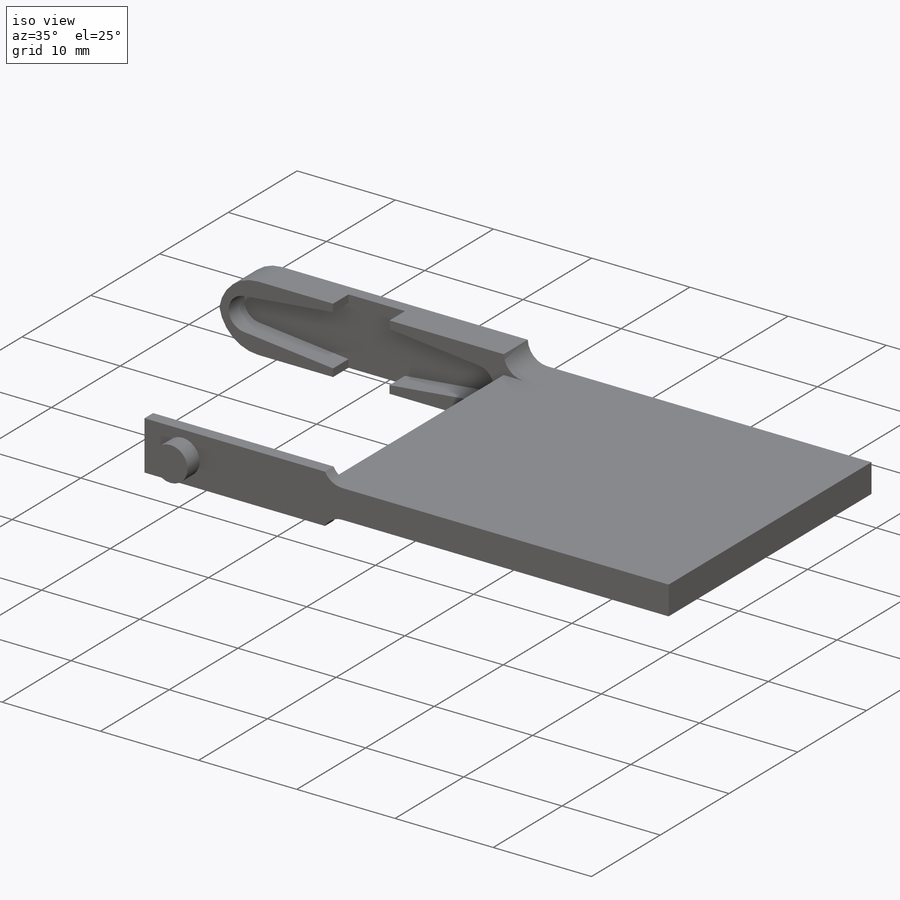
[diagram: iso view]
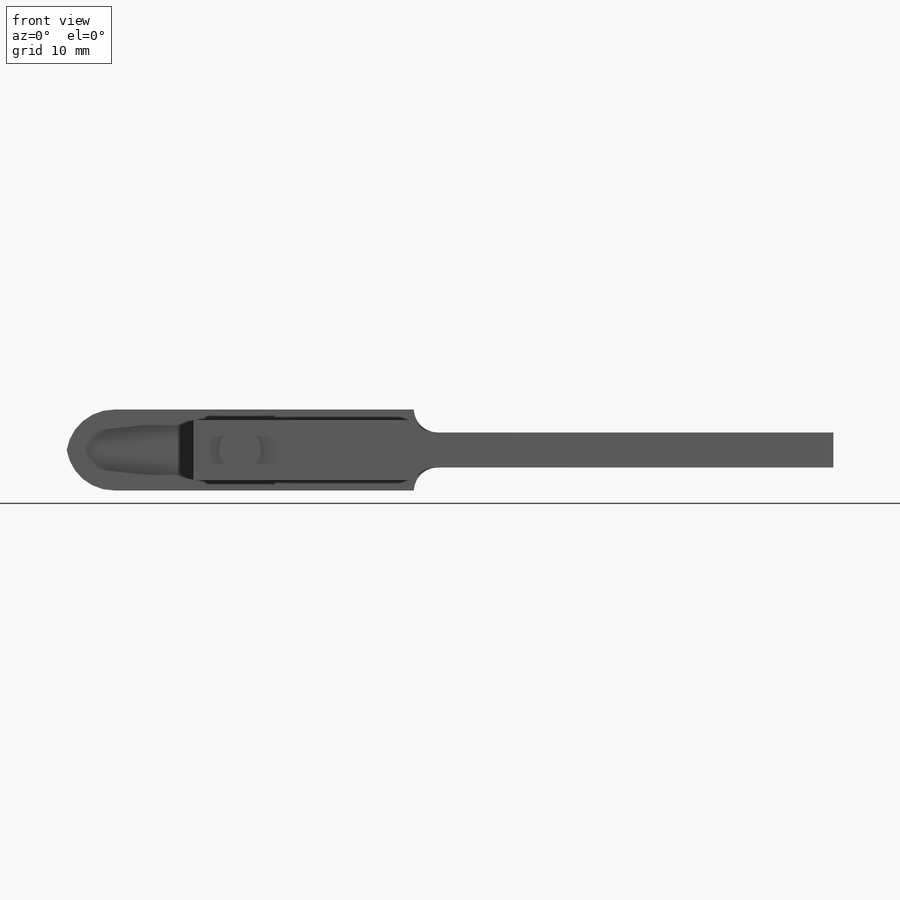
[diagram: front view]
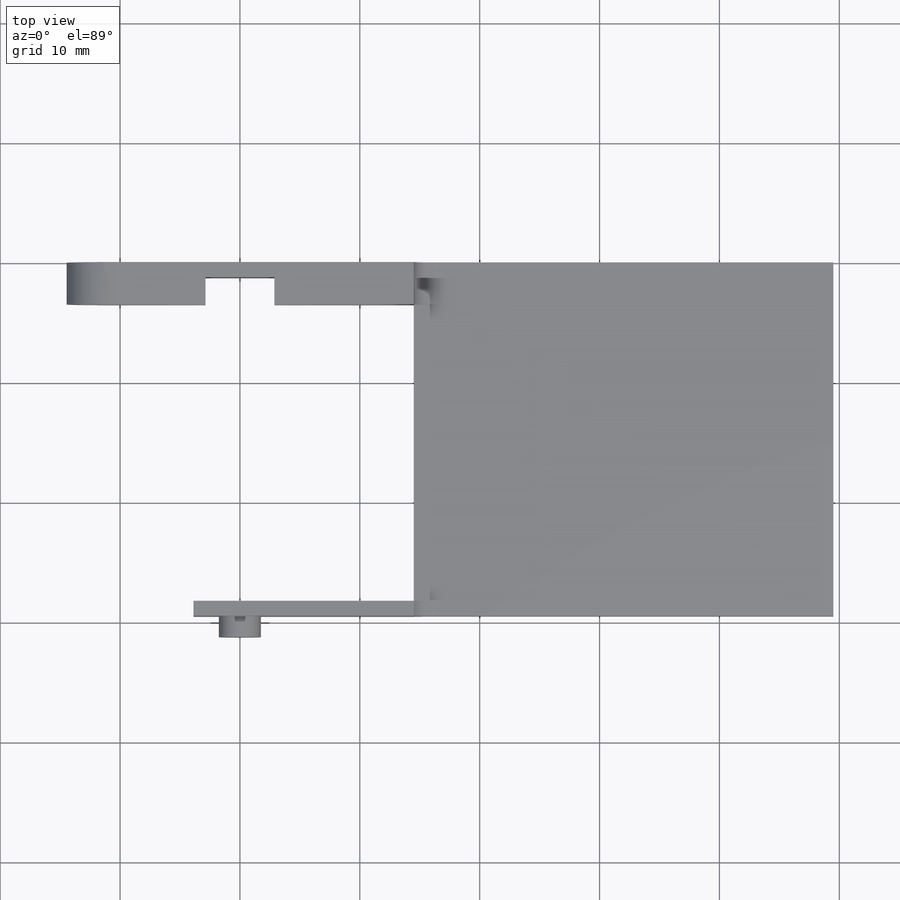
[diagram: top view]
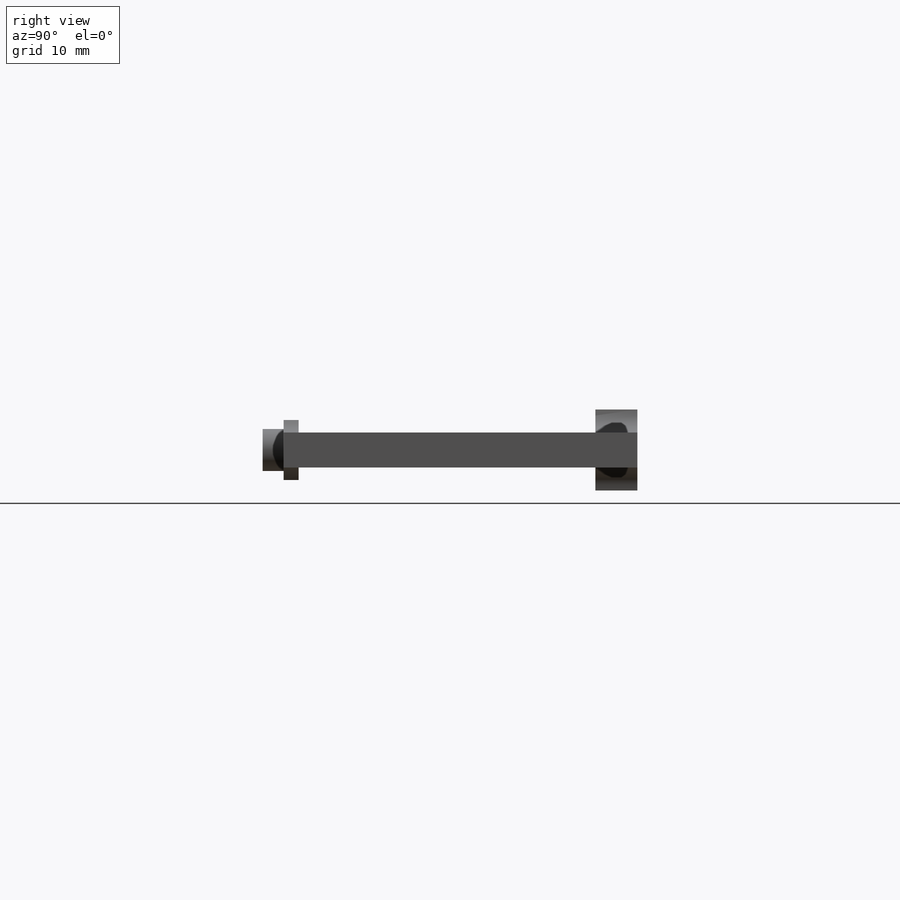
[diagram: right view]
SOLIDWORKS PART (.sldprt)
format: sldprt  version: not decoded by parser v0  size: 284,160 bytes
history: native  units: mm
features: sketch x6, extrude x5, fillet x2, material x1, cut_extrude x1 (+13 scaffold rows collapsed)
feature tree (28):
  scaffold x13  (default folders/planes/origin — collapsed)
  material  "Material <not specified>"
  sketch  "Sketch1"  dims[c1.D1=5.75mm c1.D10=~0.582869mm c1.D9=1.65mm c1.D2=13.25mm c1.D3=~2.924144mm c1.D4=35.0mm c1.D5=29.0mm c1.D6=13.25mm c1.D7=6.75mm c1.D8=~1.733624mm c2.D9=~5.029443mm c2.D11=27.0mm c2.D6=13.5mm c2.D10=1.0mm c2.D4=35.0mm c2.D2=3.0]
  extrude  "Boss-Extrude10"  Depth=3.5mm
  extrude  "Boss-Extrude15"  [1 undecoded]
  sketch  "Sketch1<16>"  dims[D1=1.25mm]
  extrude  "Boss-Extrude17"  [1 undecoded]
  sketch  "Sketch1<17>"  dims[D1=0.0mm]
  sketch  "Sketch2"  dims[c1.D1=3.5mm c1.D3=2.0mm c2.D1=17.0mm c2.D2=~2.924144mm c3.D2=90.0deg c4.D2=5.0mm c4.D3=0.0mm]
  extrude  "Boss-Extrude18"  Depth=1.25mm
  extrude  "Boss-Extrude19"  [1 undecoded]
  sketch  "Sketch2<9>"  dims[D1=1.75mm]
  fillet  "Fillet1"  Radius=2mm
  fillet  "Fillet2"  Radius=4mm
  sketch  "Sketch3"
  cut_extrude  "Cut-Extrude1"  [1 undecoded]
decode coverage: 9 of 14 modeling features carry decoded parameters
note: ~ marks probable driven/reference dimensions
note: 4 parameter values undecoded
summary: no parameter record found for 4 features
note: suppression state not decoded; provenance and decode notes live in map.json
